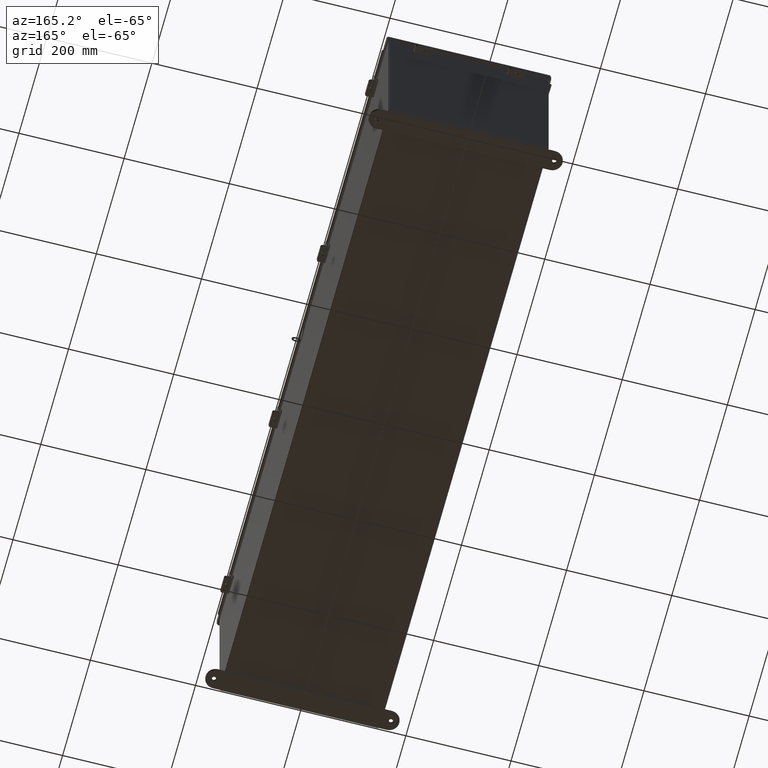
[diagram: clean part render]
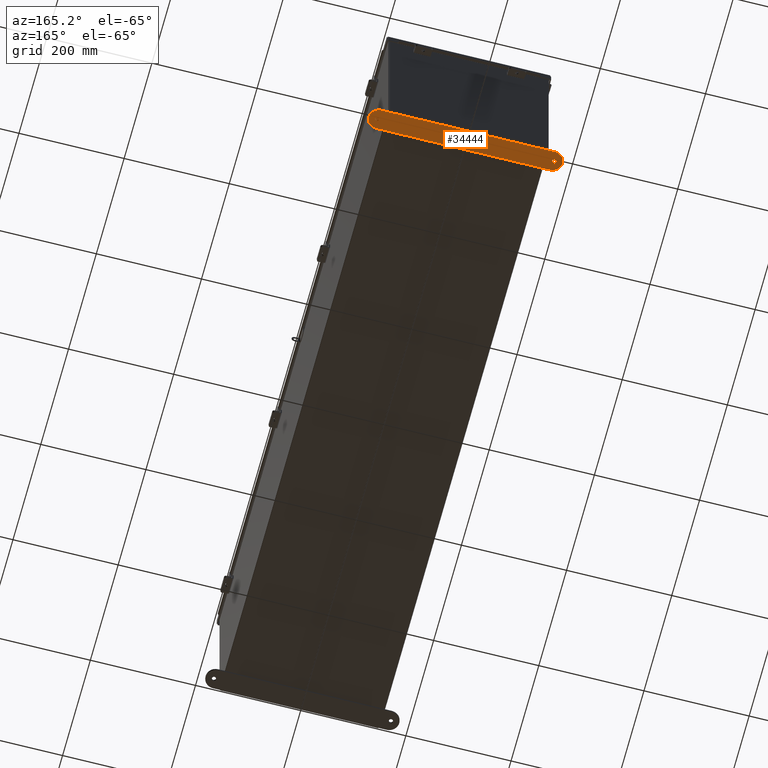
[diagram: same view with one face highlighted and labeled with its STEP entity id]
A machine part, auxiliary view. The second image highlights one B-rep face of the part: STEP entity #34444.
In plain terms, the highlighted planar face has unit normal (0, -0, 1).
Its self-contained STEP definition (entity closure, byte-faithful):
#92 = CARTESIAN_POINT ( 'NONE',  ( -6.625000000000000900, 0.4120940649496083700, 0.0000000000000000000 ) ) ;
#858 = AXIS2_PLACEMENT_3D ( 'NONE', #28497, #11579, #31315 ) ;
#1788 = CARTESIAN_POINT ( 'NONE',  ( -6.500000000000000000, 1.162094064949612300, 0.0000000000000000000 ) ) ;
#1865 = EDGE_CURVE ( 'NONE', #4176, #28142, #3027, .T. ) ;
#2389 = EDGE_LOOP ( 'NONE', ( #20956, #17853, #26218, #11022, #24804 ) ) ;
#2494 = VECTOR ( 'NONE', #31541, 39.37007874015748100 ) ;
#2921 = DIRECTION ( 'NONE',  ( 1.000000000000000000, 0.0000000000000000000, 0.0000000000000000000 ) ) ;
#3027 = LINE ( 'NONE', #9685, #23809 ) ;
#3327 = CARTESIAN_POINT ( 'NONE',  ( 6.468500000000001500, 0.4120940649496083700, 0.0000000000000000000 ) ) ;
#3410 = CIRCLE ( 'NONE', #31352, 0.7500000000000015500 ) ;
#4176 = VERTEX_POINT ( 'NONE', #6713 ) ;
#4662 = PLANE ( 'NONE',  #27550 ) ;
#4734 = VERTEX_POINT ( 'NONE', #34637 ) ;
#5252 = EDGE_CURVE ( 'NONE', #36547, #8563, #19749, .T. ) ;
#5582 = ORIENTED_EDGE ( 'NONE', *, *, #23340, .T. ) ;
#6423 = ORIENTED_EDGE ( 'NONE', *, *, #34163, .F. ) ;
#6676 = FACE_OUTER_BOUND ( 'NONE', #2389, .T. ) ;
#6713 = CARTESIAN_POINT ( 'NONE',  ( 6.500000000000000000, 1.162094064949614100, 0.0000000000000000000 ) ) ;
#7213 = AXIS2_PLACEMENT_3D ( 'NONE', #8732, #28488, #11572 ) ;
#7517 = DIRECTION ( 'NONE',  ( -0.0000000000000000000, 0.0000000000000000000, -1.000000000000000000 ) ) ;
#7575 = EDGE_LOOP ( 'NONE', ( #6423, #33422 ) ) ;
#7720 = VERTEX_POINT ( 'NONE', #29381 ) ;
#8017 = CIRCLE ( 'NONE', #22603, 0.1564999999999992800 ) ;
#8563 = VERTEX_POINT ( 'NONE', #35580 ) ;
#8732 = CARTESIAN_POINT ( 'NONE',  ( -6.500000000000000000, 0.4120940649496124300, 0.0000000000000000000 ) ) ;
#8855 = DIRECTION ( 'NONE',  ( 0.0000000000000000000, 0.0000000000000000000, 1.000000000000000000 ) ) ;
#8951 = CIRCLE ( 'NONE', #858, 0.1564999999999992800 ) ;
#9548 = VERTEX_POINT ( 'NONE', #3327 ) ;
#9685 = CARTESIAN_POINT ( 'NONE',  ( -6.500000000000000000, 1.162094064949612300, 0.0000000000000000000 ) ) ;
#10238 = CARTESIAN_POINT ( 'NONE',  ( 6.500000000000000000, 0.4120940649496125900, 0.0000000000000000000 ) ) ;
#11022 = ORIENTED_EDGE ( 'NONE', *, *, #34932, .T. ) ;
#11572 = DIRECTION ( 'NONE',  ( 1.000000000000000000, 0.0000000000000000000, 0.0000000000000000000 ) ) ;
#11579 = DIRECTION ( 'NONE',  ( -0.0000000000000000000, -0.0000000000000000000, -1.000000000000000000 ) ) ;
#12431 = AXIS2_PLACEMENT_3D ( 'NONE', #16544, #36367, #19369 ) ;
#12687 = AXIS2_PLACEMENT_3D ( 'NONE', #14074, #33850, #16885 ) ;
#13293 = FACE_BOUND ( 'NONE', #15606, .T. ) ;
#14074 = CARTESIAN_POINT ( 'NONE',  ( 6.625000000000000900, 0.4120940649496083700, 0.0000000000000000000 ) ) ;
#14566 = CARTESIAN_POINT ( 'NONE',  ( 6.500000000000000000, 0.4120940649496125900, 0.0000000000000000000 ) ) ;
#15104 = VERTEX_POINT ( 'NONE', #28476 ) ;
#15606 = EDGE_LOOP ( 'NONE', ( #5582, #17104 ) ) ;
#16544 = CARTESIAN_POINT ( 'NONE',  ( -6.625000000000000900, 0.4120940649496083700, 0.0000000000000000000 ) ) ;
#16885 = DIRECTION ( 'NONE',  ( -1.000000000000000000, 0.0000000000000000000, 0.0000000000000000000 ) ) ;
#17104 = ORIENTED_EDGE ( 'NONE', *, *, #26610, .T. ) ;
#17371 = DIRECTION ( 'NONE',  ( -1.000000000000000000, 0.0000000000000000000, 0.0000000000000000000 ) ) ;
#17853 = ORIENTED_EDGE ( 'NONE', *, *, #20198, .T. ) ;
#19369 = DIRECTION ( 'NONE',  ( 1.000000000000000000, 0.0000000000000000000, 0.0000000000000000000 ) ) ;
#19749 = CIRCLE ( 'NONE', #28515, 0.7500000000000015500 ) ;
#19873 = DIRECTION ( 'NONE',  ( 0.0000000000000000000, 0.0000000000000000000, 1.000000000000000000 ) ) ;
#20198 = EDGE_CURVE ( 'NONE', #8563, #4176, #3410, .T. ) ;
#20956 = ORIENTED_EDGE ( 'NONE', *, *, #5252, .T. ) ;
#21690 = FACE_BOUND ( 'NONE', #7575, .T. ) ;
#22603 = AXIS2_PLACEMENT_3D ( 'NONE', #92, #19873, #2921 ) ;
#23340 = EDGE_CURVE ( 'NONE', #7720, #9548, #8951, .T. ) ;
#23665 = CIRCLE ( 'NONE', #12431, 0.1564999999999992800 ) ;
#23750 = DIRECTION ( 'NONE',  ( -1.000000000000000000, -1.260852920152736700E-016, -0.0000000000000000000 ) ) ;
#23809 = VECTOR ( 'NONE', #23750, 39.37007874015748100 ) ;
#24804 = ORIENTED_EDGE ( 'NONE', *, *, #31137, .T. ) ;
#25061 = LINE ( 'NONE', #34432, #2494 ) ;
#25399 = EDGE_CURVE ( 'NONE', #15104, #26673, #23665, .T. ) ;
#25428 = CIRCLE ( 'NONE', #12687, 0.1564999999999992800 ) ;
#25665 = CARTESIAN_POINT ( 'NONE',  ( -6.468500000000001500, 0.4120940649496083700, 0.0000000000000000000 ) ) ;
#25772 = CARTESIAN_POINT ( 'NONE',  ( 6.500000000000000000, 0.4120940649496125900, 0.0000000000000000000 ) ) ;
#26218 = ORIENTED_EDGE ( 'NONE', *, *, #1865, .T. ) ;
#26610 = EDGE_CURVE ( 'NONE', #9548, #7720, #25428, .T. ) ;
#26673 = VERTEX_POINT ( 'NONE', #25665 ) ;
#27266 = DIRECTION ( 'NONE',  ( -1.000000000000000000, 0.0000000000000000000, 0.0000000000000000000 ) ) ;
#27393 = CIRCLE ( 'NONE', #7213, 0.7499999999999993300 ) ;
#27550 = AXIS2_PLACEMENT_3D ( 'NONE', #10238, #7517, #27266 ) ;
#28142 = VERTEX_POINT ( 'NONE', #1788 ) ;
#28476 = CARTESIAN_POINT ( 'NONE',  ( -6.781499999999999400, 0.4120940649496083700, 0.0000000000000000000 ) ) ;
#28488 = DIRECTION ( 'NONE',  ( 0.0000000000000000000, 0.0000000000000000000, 1.000000000000000000 ) ) ;
#28497 = CARTESIAN_POINT ( 'NONE',  ( 6.625000000000000900, 0.4120940649496083700, 0.0000000000000000000 ) ) ;
#28515 = AXIS2_PLACEMENT_3D ( 'NONE', #14566, #34342, #17371 ) ;
#28585 = DIRECTION ( 'NONE',  ( -1.000000000000000000, 0.0000000000000000000, 0.0000000000000000000 ) ) ;
#29381 = CARTESIAN_POINT ( 'NONE',  ( 6.781499999999999400, 0.4120940649496083700, 0.0000000000000000000 ) ) ;
#31137 = EDGE_CURVE ( 'NONE', #4734, #36547, #25061, .T. ) ;
#31315 = DIRECTION ( 'NONE',  ( -1.000000000000000000, 0.0000000000000000000, 0.0000000000000000000 ) ) ;
#31352 = AXIS2_PLACEMENT_3D ( 'NONE', #25772, #8855, #28585 ) ;
#31541 = DIRECTION ( 'NONE',  ( 1.000000000000000000, -1.260852920152736700E-016, 0.0000000000000000000 ) ) ;
#33422 = ORIENTED_EDGE ( 'NONE', *, *, #25399, .F. ) ;
#33712 = CARTESIAN_POINT ( 'NONE',  ( 6.500000000000000000, -0.3379059350503891300, 0.0000000000000000000 ) ) ;
#33850 = DIRECTION ( 'NONE',  ( -0.0000000000000000000, -0.0000000000000000000, -1.000000000000000000 ) ) ;
#34163 = EDGE_CURVE ( 'NONE', #26673, #15104, #8017, .T. ) ;
#34342 = DIRECTION ( 'NONE',  ( 0.0000000000000000000, 0.0000000000000000000, 1.000000000000000000 ) ) ;
#34432 = CARTESIAN_POINT ( 'NONE',  ( -6.500000000000000000, -0.3379059350503874600, 0.0000000000000000000 ) ) ;
#34444 = ADVANCED_FACE ( 'NONE', ( #6676, #21690, #13293 ), #4662, .F. ) ;
#34637 = CARTESIAN_POINT ( 'NONE',  ( -6.500000000000000000, -0.3379059350503874600, 0.0000000000000000000 ) ) ;
#34932 = EDGE_CURVE ( 'NONE', #28142, #4734, #27393, .T. ) ;
#35580 = CARTESIAN_POINT ( 'NONE',  ( 7.250000000000001800, 0.4120940649496125900, 0.0000000000000000000 ) ) ;
#36367 = DIRECTION ( 'NONE',  ( 0.0000000000000000000, 0.0000000000000000000, 1.000000000000000000 ) ) ;
#36547 = VERTEX_POINT ( 'NONE', #33712 ) ;